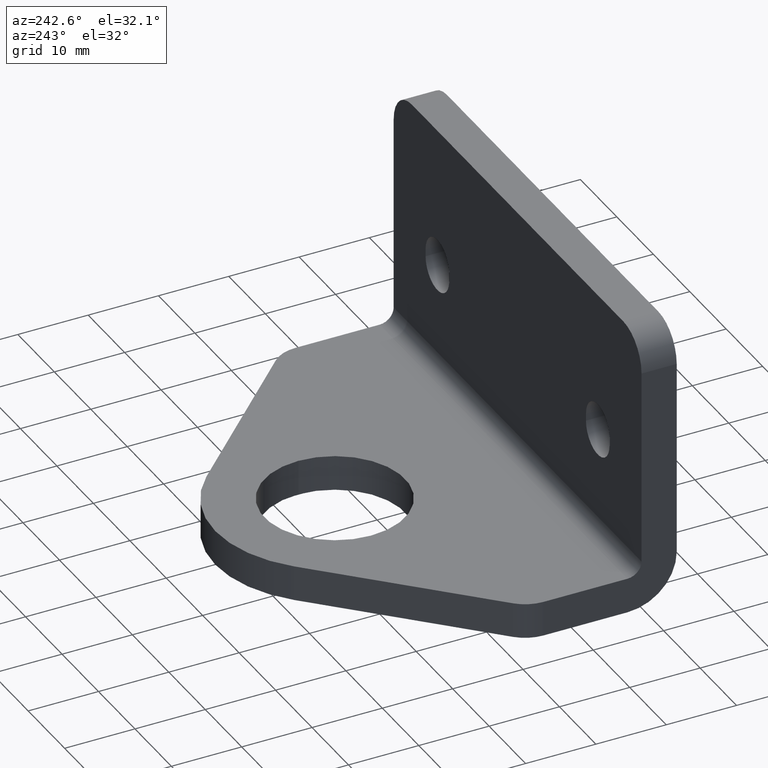
[diagram: clean part render]
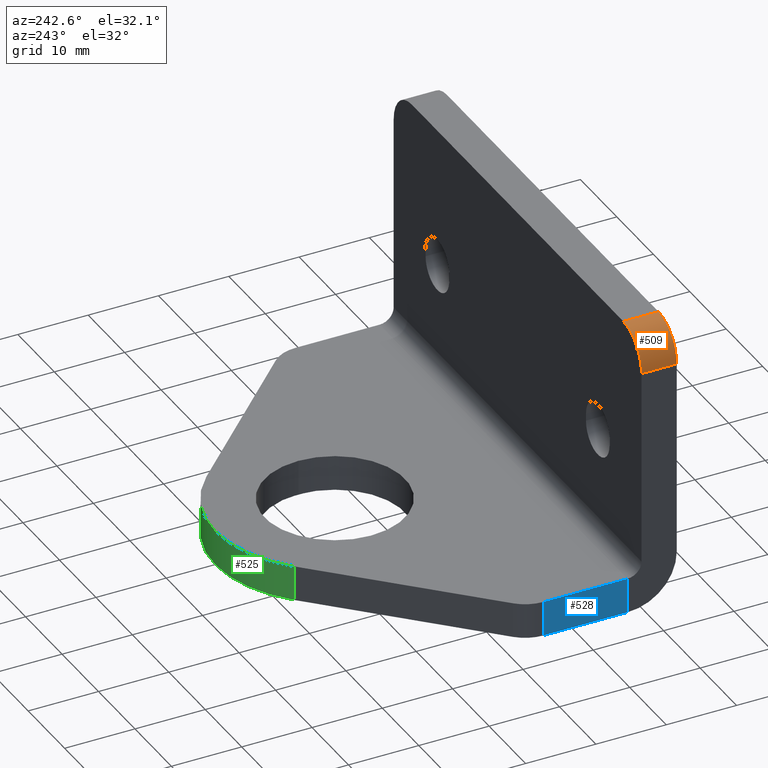
[diagram: same view with three faces highlighted in distinct colors, each labeled with its STEP entity id]
A machine part, auxiliary view with three faces highlighted in distinct colors.
Their STEP definitions:

[orange] entity #509 — the highlighted cylindrical surface (partial cylindrical patch) has radius 5 mm, axis along (0, -1, -0).
#46=FACE_OUTER_BOUND('',#75,.T.);
#75=EDGE_LOOP('',(#375,#376,#377,#378));
#118=LINE('',#817,#167);
#119=LINE('',#820,#168);
#167=VECTOR('',#660,10.);
#168=VECTOR('',#663,10.);
#208=CIRCLE('',#570,5.);
#209=CIRCLE('',#571,5.);
#240=VERTEX_POINT('',#813);
#241=VERTEX_POINT('',#814);
#242=VERTEX_POINT('',#816);
#243=VERTEX_POINT('',#818);
#294=EDGE_CURVE('',#240,#241,#208,.T.);
#295=EDGE_CURVE('',#241,#242,#118,.T.);
#296=EDGE_CURVE('',#242,#243,#209,.T.);
#297=EDGE_CURVE('',#243,#240,#119,.T.);
#375=ORIENTED_EDGE('',*,*,#294,.T.);
#376=ORIENTED_EDGE('',*,*,#295,.T.);
#377=ORIENTED_EDGE('',*,*,#296,.T.);
#378=ORIENTED_EDGE('',*,*,#297,.T.);
#493=CYLINDRICAL_SURFACE('',#569,5.);
#509=ADVANCED_FACE('',(#46),#493,.T.);
#569=AXIS2_PLACEMENT_3D('',#812,#656,#657);
#570=AXIS2_PLACEMENT_3D('',#815,#658,#659);
#571=AXIS2_PLACEMENT_3D('',#819,#661,#662);
#656=DIRECTION('center_axis',(0.,-1.,-5.39030285815812E-15));
#657=DIRECTION('ref_axis',(-0.707106781186548,-3.81151970365284E-15,0.707106781186548));
#658=DIRECTION('center_axis',(-4.88408820356866E-18,1.,5.58626046576697E-15));
#659=DIRECTION('ref_axis',(-0.707106781186548,-3.9535362287068E-15,0.707106781186548));
#660=DIRECTION('',(0.,1.,5.39030285815812E-15));
#661=DIRECTION('center_axis',(-4.88408820356846E-18,-1.,-5.58626046576697E-15));
#662=DIRECTION('ref_axis',(-0.707106781186548,-3.94662908492949E-15,0.707106781186548));
#663=DIRECTION('',(0.,-1.,-5.39030285815812E-15));
#812=CARTESIAN_POINT('Origin',(29.0042550273485,231.069817976792,35.));
#813=CARTESIAN_POINT('',(24.0042550273485,226.069817976792,35.));
#814=CARTESIAN_POINT('',(29.0042550273485,226.069817976792,40.));
#815=CARTESIAN_POINT('Origin',(29.0042550273485,226.069817976792,35.));
#816=CARTESIAN_POINT('',(29.0042550273485,231.069817976792,40.));
#817=CARTESIAN_POINT('',(29.0042550273485,231.069817976792,40.));
#818=CARTESIAN_POINT('',(24.0042550273485,231.069817976792,35.));
#819=CARTESIAN_POINT('Origin',(29.0042550273485,231.069817976792,35.));
#820=CARTESIAN_POINT('',(24.0042550273485,231.069817976792,35.));

[blue] entity #528 — the highlighted planar face has unit normal (-1, 0, 0).
#36=PLANE('',#604);
#65=FACE_OUTER_BOUND('',#99,.T.);
#99=EDGE_LOOP('',(#476,#477,#478,#479));
#132=LINE('',#855,#181);
#139=LINE('',#873,#188);
#143=LINE('',#891,#192);
#150=LINE('',#910,#199);
#181=VECTOR('',#698,10.);
#188=VECTOR('',#719,10.);
#192=VECTOR('',#737,10.);
#199=VECTOR('',#760,10.);
#252=VERTEX_POINT('',#847);
#254=VERTEX_POINT('',#853);
#258=VERTEX_POINT('',#872);
#265=VERTEX_POINT('',#890);
#315=EDGE_CURVE('',#252,#254,#132,.T.);
#323=EDGE_CURVE('',#258,#252,#139,.T.);
#332=EDGE_CURVE('',#258,#265,#143,.T.);
#342=EDGE_CURVE('',#265,#254,#150,.T.);
#476=ORIENTED_EDGE('',*,*,#315,.T.);
#477=ORIENTED_EDGE('',*,*,#342,.F.);
#478=ORIENTED_EDGE('',*,*,#332,.F.);
#479=ORIENTED_EDGE('',*,*,#323,.T.);
#528=ADVANCED_FACE('',(#65),#36,.T.);
#604=AXIS2_PLACEMENT_3D('',#909,#758,#759);
#698=DIRECTION('',(0.,0.,1.));
#719=DIRECTION('',(0.,-1.,0.));
#737=DIRECTION('',(0.,0.,1.));
#758=DIRECTION('center_axis',(-1.,0.,0.));
#759=DIRECTION('ref_axis',(0.,-1.,0.));
#760=DIRECTION('',(0.,-1.,0.));
#847=CARTESIAN_POINT('',(24.0042550273485,233.069817976792,0.));
#853=CARTESIAN_POINT('',(24.0042550273485,233.069817976792,5.));
#855=CARTESIAN_POINT('',(24.0042550273485,233.069817976792,2.5));
#872=CARTESIAN_POINT('',(24.0042550273485,245.04038072527,0.));
#873=CARTESIAN_POINT('',(24.0042550273485,245.04038072527,0.));
#890=CARTESIAN_POINT('',(24.0042550273485,245.04038072527,5.));
#891=CARTESIAN_POINT('',(24.0042550273485,245.04038072527,0.));
#909=CARTESIAN_POINT('Origin',(24.0042550273485,231.069817976793,0.));
#910=CARTESIAN_POINT('',(24.0042550273485,245.04038072527,5.));

[green] entity #525 — the highlighted cylindrical surface (partial cylindrical patch) has radius 17 mm, axis along (0, 0, 1).
#62=FACE_OUTER_BOUND('',#96,.T.);
#96=EDGE_LOOP('',(#464,#465,#466,#467));
#146=LINE('',#898,#195);
#147=LINE('',#902,#196);
#195=VECTOR('',#744,10.);
#196=VECTOR('',#749,10.);
#217=CIRCLE('',#591,17.);
#222=CIRCLE('',#600,17.);
#260=VERTEX_POINT('',#876);
#261=VERTEX_POINT('',#878);
#267=VERTEX_POINT('',#896);
#268=VERTEX_POINT('',#900);
#326=EDGE_CURVE('',#261,#260,#217,.T.);
#336=EDGE_CURVE('',#260,#267,#146,.T.);
#337=EDGE_CURVE('',#268,#267,#222,.T.);
#338=EDGE_CURVE('',#261,#268,#147,.T.);
#464=ORIENTED_EDGE('',*,*,#326,.T.);
#465=ORIENTED_EDGE('',*,*,#336,.T.);
#466=ORIENTED_EDGE('',*,*,#337,.F.);
#467=ORIENTED_EDGE('',*,*,#338,.F.);
#499=CYLINDRICAL_SURFACE('',#599,17.);
#525=ADVANCED_FACE('',(#62),#499,.T.);
#591=AXIS2_PLACEMENT_3D('',#879,#723,#724);
#599=AXIS2_PLACEMENT_3D('',#899,#745,#746);
#600=AXIS2_PLACEMENT_3D('',#901,#747,#748);
#723=DIRECTION('center_axis',(0.,0.,1.));
#724=DIRECTION('ref_axis',(0.707106781186542,0.707106781186554,0.));
#744=DIRECTION('',(0.,0.,1.));
#745=DIRECTION('center_axis',(0.,0.,1.));
#746=DIRECTION('ref_axis',(0.707106781186542,0.707106781186554,0.));
#747=DIRECTION('center_axis',(0.,0.,1.));
#748=DIRECTION('ref_axis',(0.707106781186542,0.707106781186554,0.));
#749=DIRECTION('',(0.,0.,1.));
#876=CARTESIAN_POINT('',(45.9834398471767,269.090633356964,0.));
#878=CARTESIAN_POINT('',(70.0250704075193,269.090633356964,0.));
#879=CARTESIAN_POINT('Origin',(58.0042551273481,257.069818076792,0.));
#896=CARTESIAN_POINT('',(45.9834398471767,269.090633356964,5.));
#898=CARTESIAN_POINT('',(45.9834398471767,269.090633356964,0.));
#899=CARTESIAN_POINT('Origin',(58.0042551273481,257.069818076792,0.));
#900=CARTESIAN_POINT('',(70.0250704075193,269.090633356964,5.));
#901=CARTESIAN_POINT('Origin',(58.0042551273481,257.069818076792,5.));
#902=CARTESIAN_POINT('',(70.0250704075193,269.090633356964,0.));